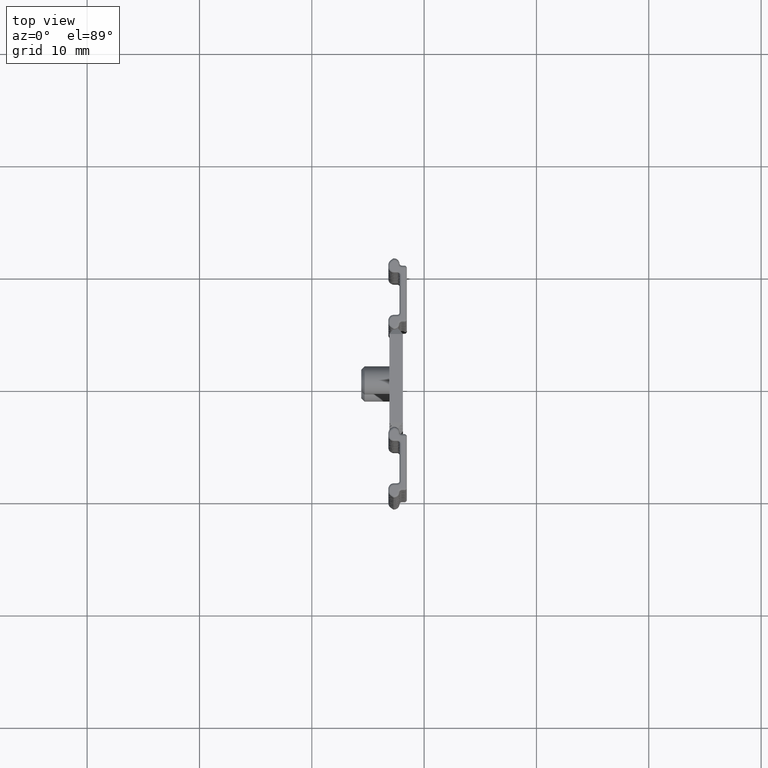
[diagram: clean part render]
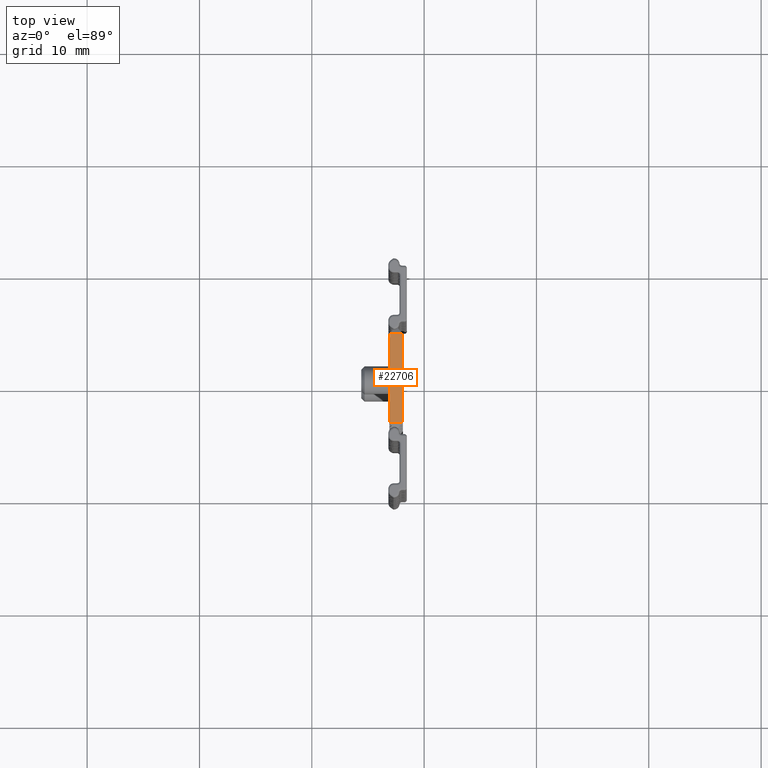
[diagram: same view with one face highlighted and labeled with its STEP entity id]
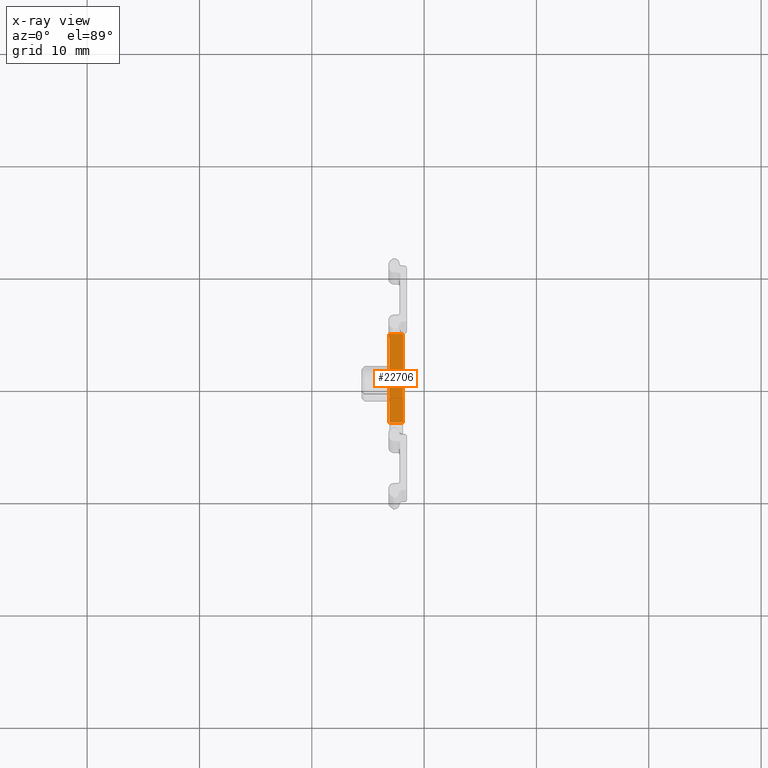
[diagram: x-ray of the same camera — body ghosted, the highlighted face saturated]
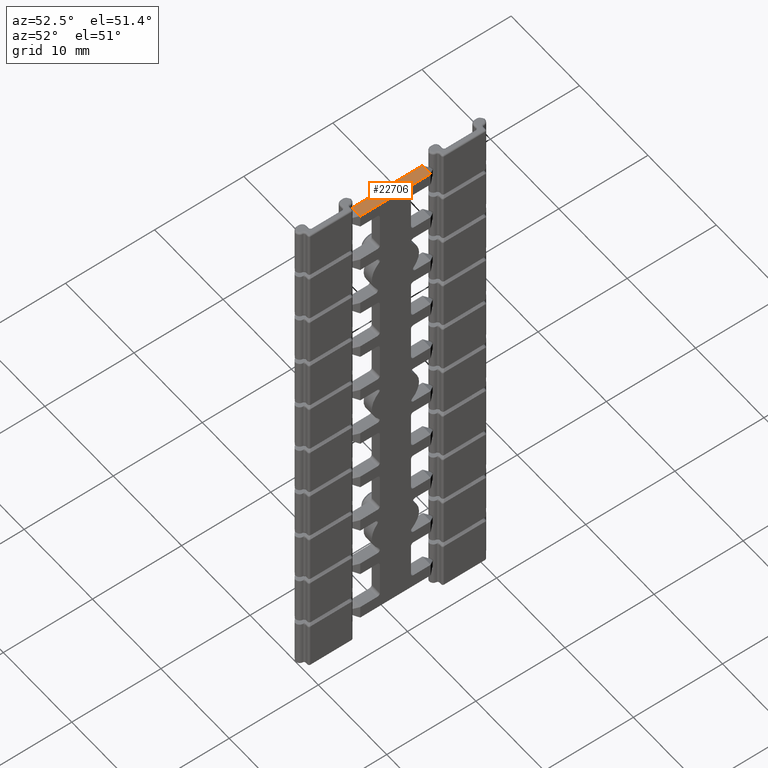
[diagram: same view with one face highlighted and labeled with its STEP entity id]
A machine part, top view. The second image highlights one B-rep face of the part: STEP entity #22706.
The next image is the same camera in x-ray: the body ghosted, the highlighted face saturated — about 0% of this face is hidden behind the body in this view.
A second angle (auxiliary view) of the same face is appended — the face is thin or edge-on in the first view.
In plain terms, the highlighted planar face has unit normal (-0, -0, -1).
Its self-contained STEP definition (entity closure, byte-faithful):
#808 = FACE_OUTER_BOUND ( 'NONE', #22720, .T. ) ;
#1279 = DIRECTION ( 'NONE',  ( 1.000000000000000000, 2.516302184933395300E-014, -0.0000000000000000000 ) ) ;
#1280 = VECTOR ( 'NONE', #1279, 1000.000000000000000 ) ;
#1282 = CARTESIAN_POINT ( 'NONE',  ( 46.81237692440163300, 96.16000000000011000, 39.47119906854225500 ) ) ;
#1289 = DIRECTION ( 'NONE',  ( 1.000000000000000000, 2.516302184933395300E-014, -0.0000000000000000000 ) ) ;
#1291 = VECTOR ( 'NONE', #1289, 1000.000000000000000 ) ;
#1293 = CARTESIAN_POINT ( 'NONE',  ( 46.81237692440144100, 104.0600000000000200, 39.47119906854225500 ) ) ;
#1305 = LINE ( 'NONE', #1282, #1280 ) ;
#1327 = LINE ( 'NONE', #1293, #1291 ) ;
#3362 = CARTESIAN_POINT ( 'NONE',  ( 46.90237692440217600, 104.0600000000000200, 39.47119906854225500 ) ) ;
#3391 = DIRECTION ( 'NONE',  ( 2.516302184933418300E-014, -1.000000000000000000, 3.812579068080936900E-016 ) ) ;
#3392 = VECTOR ( 'NONE', #3391, 1000.000000000000000 ) ;
#3393 = CARTESIAN_POINT ( 'NONE',  ( 46.90237692440219800, 95.56000000000008800, 39.47119906854226200 ) ) ;
#3394 = LINE ( 'NONE', #3393, #3392 ) ;
#3405 = CARTESIAN_POINT ( 'NONE',  ( 46.90237692440218400, 96.16000000000013900, 39.47119906854226200 ) ) ;
#13775 = EDGE_CURVE ( 'NONE', #13797, #13859, #45071, .T. ) ;
#13797 = VERTEX_POINT ( 'NONE', #45152 ) ;
#13859 = VERTEX_POINT ( 'NONE', #45345 ) ;
#15827 = VERTEX_POINT ( 'NONE', #3362 ) ;
#15832 = VERTEX_POINT ( 'NONE', #3405 ) ;
#15836 = EDGE_CURVE ( 'NONE', #15827, #15832, #3394, .T. ) ;
#22694 = ORIENTED_EDGE ( 'NONE', *, *, #22719, .F. ) ;
#22695 = ORIENTED_EDGE ( 'NONE', *, *, #15836, .T. ) ;
#22706 = ADVANCED_FACE ( 'NONE', ( #808 ), #38010, .F. ) ;
#22707 = ORIENTED_EDGE ( 'NONE', *, *, #13775, .F. ) ;
#22708 = ORIENTED_EDGE ( 'NONE', *, *, #22721, .T. ) ;
#22719 = EDGE_CURVE ( 'NONE', #15827, #13797, #1327, .T. ) ;
#22720 = EDGE_LOOP ( 'NONE', ( #22708, #22707, #22694, #22695 ) ) ;
#22721 = EDGE_CURVE ( 'NONE', #15832, #13859, #1305, .T. ) ;
#38008 = AXIS2_PLACEMENT_3D ( 'NONE', #38223, #38337, #38336 ) ;
#38010 = PLANE ( 'NONE',  #38008 ) ;
#38223 = CARTESIAN_POINT ( 'NONE',  ( 48.10237692440219300, 95.56000000000013000, 39.47119906854226200 ) ) ;
#38336 = DIRECTION ( 'NONE',  ( 0.0000000000000000000, 1.000000000000000000, -3.812579068080937400E-016 ) ) ;
#38337 = DIRECTION ( 'NONE',  ( -1.472918471416787600E-028, -3.812579068080937400E-016, -1.000000000000000000 ) ) ;
#45056 = DIRECTION ( 'NONE',  ( 2.516302184933418300E-014, -1.000000000000000000, 3.812579068080936900E-016 ) ) ;
#45057 = VECTOR ( 'NONE', #45056, 1000.000000000000000 ) ;
#45058 = CARTESIAN_POINT ( 'NONE',  ( 48.10237692440219300, 95.56000000000013000, 39.47119906854226200 ) ) ;
#45071 = LINE ( 'NONE', #45058, #45057 ) ;
#45152 = CARTESIAN_POINT ( 'NONE',  ( 48.10237692440198000, 104.0600000000000400, 39.47119906854226200 ) ) ;
#45345 = CARTESIAN_POINT ( 'NONE',  ( 48.10237692440217900, 96.16000000000013900, 39.47119906854225500 ) ) ;